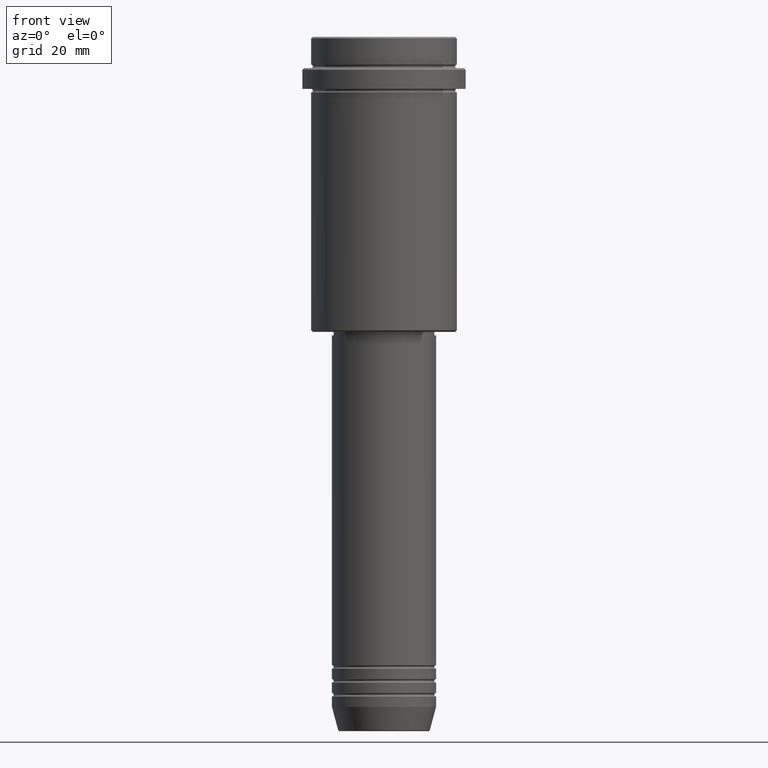
[diagram: clean part render]
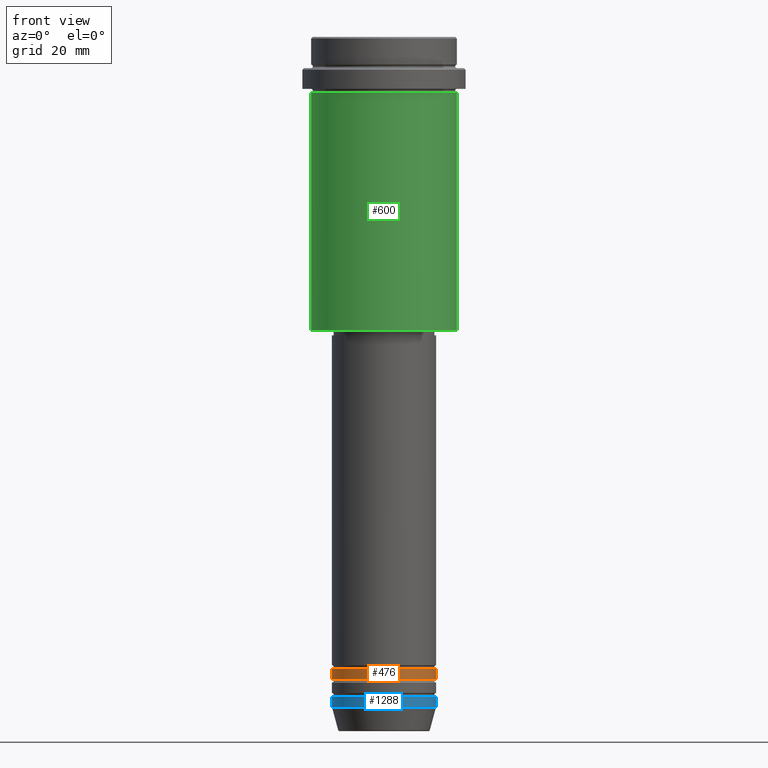
[diagram: same view with three faces highlighted in distinct colors, each labeled with its STEP entity id]
A machine part, front view with three faces highlighted in distinct colors.
Their STEP definitions:

[orange] entity #476 — the highlighted cylindrical surface (partial cylindrical patch) has radius 15 mm, axis along (-0, -0, 1).
#61 = CARTESIAN_POINT ( 'NONE',  ( -15.00000000000000000, 1.836970198721029589E-15, -181.9999999999998863 ) ) ;
#112 = EDGE_CURVE ( 'NONE', #1110, #1356, #1303, .T. ) ;
#162 = AXIS2_PLACEMENT_3D ( 'NONE', #1315, #1084, #646 ) ;
#187 = AXIS2_PLACEMENT_3D ( 'NONE', #811, #394, #1239 ) ;
#197 = CARTESIAN_POINT ( 'NONE',  ( 15.00000000000000000, 0.000000000000000000, 0.000000000000000000 ) ) ;
#326 = VECTOR ( 'NONE', #508, 1000.000000000000000 ) ;
#394 = DIRECTION ( 'NONE',  ( -0.000000000000000000, -0.000000000000000000, 1.000000000000000000 ) ) ;
#401 = CIRCLE ( 'NONE', #736, 15.00000000000000000 ) ;
#402 = LINE ( 'NONE', #197, #808 ) ;
#446 = VERTEX_POINT ( 'NONE', #61 ) ;
#476 = ADVANCED_FACE ( 'NONE', ( #652 ), #539, .T. ) ;
#500 = CARTESIAN_POINT ( 'NONE',  ( -15.00000000000000000, 1.836970198721029589E-15, 0.000000000000000000 ) ) ;
#508 = DIRECTION ( 'NONE',  ( -0.000000000000000000, -0.000000000000000000, 1.000000000000000000 ) ) ;
#539 = CYLINDRICAL_SURFACE ( 'NONE', #162, 15.00000000000000000 ) ;
#588 = CARTESIAN_POINT ( 'NONE',  ( -15.00000000000000000, 1.836970198721029589E-15, -184.9999999999998863 ) ) ;
#607 = ORIENTED_EDGE ( 'NONE', *, *, #112, .T. ) ;
#646 = DIRECTION ( 'NONE',  ( 1.000000000000000000, 0.000000000000000000, 0.000000000000000000 ) ) ;
#652 = FACE_OUTER_BOUND ( 'NONE', #1132, .T. ) ;
#659 = ORIENTED_EDGE ( 'NONE', *, *, #773, .F. ) ;
#662 = CARTESIAN_POINT ( 'NONE',  ( 15.00000000000000000, 0.000000000000000000, -181.9999999999998863 ) ) ;
#730 = DIRECTION ( 'NONE',  ( -0.000000000000000000, -0.000000000000000000, 1.000000000000000000 ) ) ;
#736 = AXIS2_PLACEMENT_3D ( 'NONE', #1136, #730, #1061 ) ;
#773 = EDGE_CURVE ( 'NONE', #446, #1017, #401, .T. ) ;
#808 = VECTOR ( 'NONE', #951, 1000.000000000000000 ) ;
#811 = CARTESIAN_POINT ( 'NONE',  ( 0.000000000000000000, 0.000000000000000000, -184.9999999999998863 ) ) ;
#898 = EDGE_CURVE ( 'NONE', #1356, #1017, #402, .T. ) ;
#951 = DIRECTION ( 'NONE',  ( -0.000000000000000000, -0.000000000000000000, 1.000000000000000000 ) ) ;
#995 = ORIENTED_EDGE ( 'NONE', *, *, #1292, .F. ) ;
#1017 = VERTEX_POINT ( 'NONE', #662 ) ;
#1053 = LINE ( 'NONE', #500, #326 ) ;
#1061 = DIRECTION ( 'NONE',  ( 1.000000000000000000, 0.000000000000000000, 0.000000000000000000 ) ) ;
#1084 = DIRECTION ( 'NONE',  ( -0.000000000000000000, -0.000000000000000000, 1.000000000000000000 ) ) ;
#1110 = VERTEX_POINT ( 'NONE', #588 ) ;
#1132 = EDGE_LOOP ( 'NONE', ( #995, #607, #1378, #659 ) ) ;
#1136 = CARTESIAN_POINT ( 'NONE',  ( 0.000000000000000000, 0.000000000000000000, -181.9999999999998863 ) ) ;
#1239 = DIRECTION ( 'NONE',  ( 1.000000000000000000, 0.000000000000000000, 0.000000000000000000 ) ) ;
#1292 = EDGE_CURVE ( 'NONE', #1110, #446, #1053, .T. ) ;
#1303 = CIRCLE ( 'NONE', #187, 15.00000000000000000 ) ;
#1315 = CARTESIAN_POINT ( 'NONE',  ( 0.000000000000000000, 0.000000000000000000, 0.000000000000000000 ) ) ;
#1356 = VERTEX_POINT ( 'NONE', #1404 ) ;
#1378 = ORIENTED_EDGE ( 'NONE', *, *, #898, .T. ) ;
#1404 = CARTESIAN_POINT ( 'NONE',  ( 15.00000000000000000, 0.000000000000000000, -184.9999999999998863 ) ) ;

[blue] entity #1288 — the highlighted cylindrical surface (partial cylindrical patch) has radius 15 mm, axis along (-0, -0, 1).
#10 = DIRECTION ( 'NONE',  ( -0.000000000000000000, -0.000000000000000000, 1.000000000000000000 ) ) ;
#68 = CYLINDRICAL_SURFACE ( 'NONE', #892, 15.00000000000000000 ) ;
#141 = VECTOR ( 'NONE', #10, 1000.000000000000000 ) ;
#156 = CARTESIAN_POINT ( 'NONE',  ( 0.000000000000000000, 0.000000000000000000, -193.0000000000000000 ) ) ;
#168 = FACE_OUTER_BOUND ( 'NONE', #1388, .T. ) ;
#209 = ORIENTED_EDGE ( 'NONE', *, *, #1077, .T. ) ;
#230 = ORIENTED_EDGE ( 'NONE', *, *, #470, .F. ) ;
#249 = DIRECTION ( 'NONE',  ( -0.000000000000000000, -0.000000000000000000, 1.000000000000000000 ) ) ;
#289 = CARTESIAN_POINT ( 'NONE',  ( -15.00000000000000000, 1.836970198721029589E-15, -193.0000000000000000 ) ) ;
#345 = LINE ( 'NONE', #1193, #141 ) ;
#357 = DIRECTION ( 'NONE',  ( -0.000000000000000000, -0.000000000000000000, 1.000000000000000000 ) ) ;
#381 = EDGE_CURVE ( 'NONE', #897, #626, #643, .T. ) ;
#451 = CARTESIAN_POINT ( 'NONE',  ( 15.00000000000000000, 0.000000000000000000, -193.0000000000000000 ) ) ;
#470 = EDGE_CURVE ( 'NONE', #759, #897, #345, .T. ) ;
#502 = DIRECTION ( 'NONE',  ( -0.000000000000000000, -0.000000000000000000, 1.000000000000000000 ) ) ;
#509 = AXIS2_PLACEMENT_3D ( 'NONE', #946, #502, #512 ) ;
#512 = DIRECTION ( 'NONE',  ( 1.000000000000000000, 0.000000000000000000, 0.000000000000000000 ) ) ;
#528 = LINE ( 'NONE', #884, #833 ) ;
#551 = CIRCLE ( 'NONE', #692, 15.00000000000000000 ) ;
#564 = VERTEX_POINT ( 'NONE', #451 ) ;
#626 = VERTEX_POINT ( 'NONE', #1361 ) ;
#628 = EDGE_CURVE ( 'NONE', #759, #564, #551, .T. ) ;
#629 = DIRECTION ( 'NONE',  ( -0.000000000000000000, -0.000000000000000000, 1.000000000000000000 ) ) ;
#643 = CIRCLE ( 'NONE', #509, 15.00000000000000000 ) ;
#692 = AXIS2_PLACEMENT_3D ( 'NONE', #156, #357, #1338 ) ;
#759 = VERTEX_POINT ( 'NONE', #289 ) ;
#833 = VECTOR ( 'NONE', #249, 1000.000000000000000 ) ;
#840 = CARTESIAN_POINT ( 'NONE',  ( 0.000000000000000000, 0.000000000000000000, 0.000000000000000000 ) ) ;
#884 = CARTESIAN_POINT ( 'NONE',  ( 15.00000000000000000, 0.000000000000000000, 0.000000000000000000 ) ) ;
#887 = ORIENTED_EDGE ( 'NONE', *, *, #628, .T. ) ;
#892 = AXIS2_PLACEMENT_3D ( 'NONE', #840, #629, #1245 ) ;
#897 = VERTEX_POINT ( 'NONE', #1170 ) ;
#946 = CARTESIAN_POINT ( 'NONE',  ( 0.000000000000000000, 0.000000000000000000, -190.0000000000000000 ) ) ;
#1077 = EDGE_CURVE ( 'NONE', #564, #626, #528, .T. ) ;
#1170 = CARTESIAN_POINT ( 'NONE',  ( -15.00000000000000000, 1.836970198721029589E-15, -190.0000000000000000 ) ) ;
#1193 = CARTESIAN_POINT ( 'NONE',  ( -15.00000000000000000, 1.836970198721029589E-15, 0.000000000000000000 ) ) ;
#1245 = DIRECTION ( 'NONE',  ( 1.000000000000000000, 0.000000000000000000, 0.000000000000000000 ) ) ;
#1288 = ADVANCED_FACE ( 'NONE', ( #168 ), #68, .T. ) ;
#1338 = DIRECTION ( 'NONE',  ( 1.000000000000000000, 0.000000000000000000, 0.000000000000000000 ) ) ;
#1361 = CARTESIAN_POINT ( 'NONE',  ( 15.00000000000000000, 0.000000000000000000, -190.0000000000000000 ) ) ;
#1384 = ORIENTED_EDGE ( 'NONE', *, *, #381, .F. ) ;
#1388 = EDGE_LOOP ( 'NONE', ( #230, #887, #209, #1384 ) ) ;

[green] entity #600 — the highlighted cylindrical surface (partial cylindrical patch) has radius 21 mm, axis along (-0, -0, 1).
#16 = CARTESIAN_POINT ( 'NONE',  ( 21.00000000000000000, 0.000000000000000000, 0.000000000000000000 ) ) ;
#30 = AXIS2_PLACEMENT_3D ( 'NONE', #1289, #966, #316 ) ;
#31 = CARTESIAN_POINT ( 'NONE',  ( 0.000000000000000000, 0.000000000000000000, 0.000000000000000000 ) ) ;
#46 = DIRECTION ( 'NONE',  ( -0.000000000000000000, -0.000000000000000000, 1.000000000000000000 ) ) ;
#67 = VERTEX_POINT ( 'NONE', #338 ) ;
#120 = AXIS2_PLACEMENT_3D ( 'NONE', #31, #461, #819 ) ;
#145 = LINE ( 'NONE', #994, #1074 ) ;
#316 = DIRECTION ( 'NONE',  ( 1.000000000000000000, 0.000000000000000000, 0.000000000000000000 ) ) ;
#329 = CIRCLE ( 'NONE', #1096, 21.00000000000000000 ) ;
#338 = CARTESIAN_POINT ( 'NONE',  ( 21.00000000000000000, 0.000000000000000000, -84.49999999999997158 ) ) ;
#415 = DIRECTION ( 'NONE',  ( -1.000000000000000000, 0.000000000000000000, 0.000000000000000000 ) ) ;
#429 = CYLINDRICAL_SURFACE ( 'NONE', #120, 21.00000000000000000 ) ;
#461 = DIRECTION ( 'NONE',  ( -0.000000000000000000, -0.000000000000000000, 1.000000000000000000 ) ) ;
#480 = CARTESIAN_POINT ( 'NONE',  ( -21.00000000000000000, 2.571758278209441661E-15, -84.49999999999997158 ) ) ;
#535 = CIRCLE ( 'NONE', #30, 21.00000000000000000 ) ;
#573 = ORIENTED_EDGE ( 'NONE', *, *, #635, .F. ) ;
#600 = ADVANCED_FACE ( 'NONE', ( #1320 ), #429, .T. ) ;
#620 = CARTESIAN_POINT ( 'NONE',  ( 21.00000000000000000, 0.000000000000000000, -16.00000000000000355 ) ) ;
#635 = EDGE_CURVE ( 'NONE', #1177, #1111, #145, .T. ) ;
#819 = DIRECTION ( 'NONE',  ( 1.000000000000000000, 0.000000000000000000, 0.000000000000000000 ) ) ;
#847 = VERTEX_POINT ( 'NONE', #620 ) ;
#868 = EDGE_CURVE ( 'NONE', #1177, #67, #329, .T. ) ;
#966 = DIRECTION ( 'NONE',  ( -0.000000000000000000, -0.000000000000000000, 1.000000000000000000 ) ) ;
#994 = CARTESIAN_POINT ( 'NONE',  ( -21.00000000000000000, 2.571758278209441661E-15, 0.000000000000000000 ) ) ;
#1008 = EDGE_CURVE ( 'NONE', #1111, #847, #535, .T. ) ;
#1020 = DIRECTION ( 'NONE',  ( -0.000000000000000000, -0.000000000000000000, 1.000000000000000000 ) ) ;
#1025 = EDGE_LOOP ( 'NONE', ( #573, #1234, #1080, #1041 ) ) ;
#1041 = ORIENTED_EDGE ( 'NONE', *, *, #1008, .F. ) ;
#1074 = VECTOR ( 'NONE', #1020, 1000.000000000000000 ) ;
#1080 = ORIENTED_EDGE ( 'NONE', *, *, #1167, .T. ) ;
#1096 = AXIS2_PLACEMENT_3D ( 'NONE', #1386, #1391, #415 ) ;
#1111 = VERTEX_POINT ( 'NONE', #1125 ) ;
#1125 = CARTESIAN_POINT ( 'NONE',  ( -21.00000000000000000, 2.571758278209441661E-15, -16.00000000000000355 ) ) ;
#1167 = EDGE_CURVE ( 'NONE', #67, #847, #1209, .T. ) ;
#1177 = VERTEX_POINT ( 'NONE', #480 ) ;
#1209 = LINE ( 'NONE', #16, #1372 ) ;
#1234 = ORIENTED_EDGE ( 'NONE', *, *, #868, .T. ) ;
#1289 = CARTESIAN_POINT ( 'NONE',  ( 0.000000000000000000, 0.000000000000000000, -16.00000000000000355 ) ) ;
#1320 = FACE_OUTER_BOUND ( 'NONE', #1025, .T. ) ;
#1372 = VECTOR ( 'NONE', #46, 1000.000000000000000 ) ;
#1386 = CARTESIAN_POINT ( 'NONE',  ( 0.000000000000000000, 0.000000000000000000, -84.49999999999997158 ) ) ;
#1391 = DIRECTION ( 'NONE',  ( -0.000000000000000000, -0.000000000000000000, 1.000000000000000000 ) ) ;